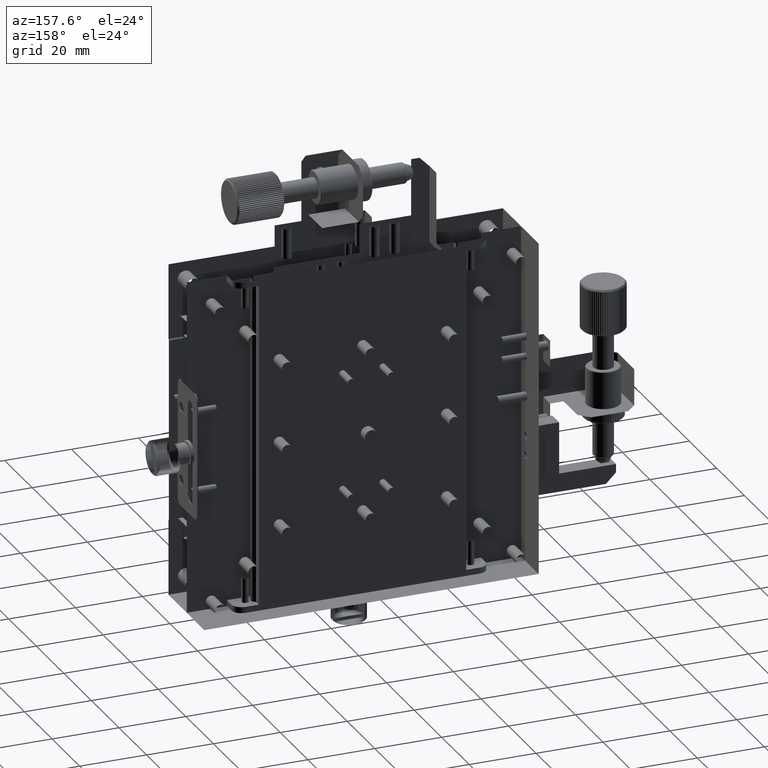
[diagram: clean part render]
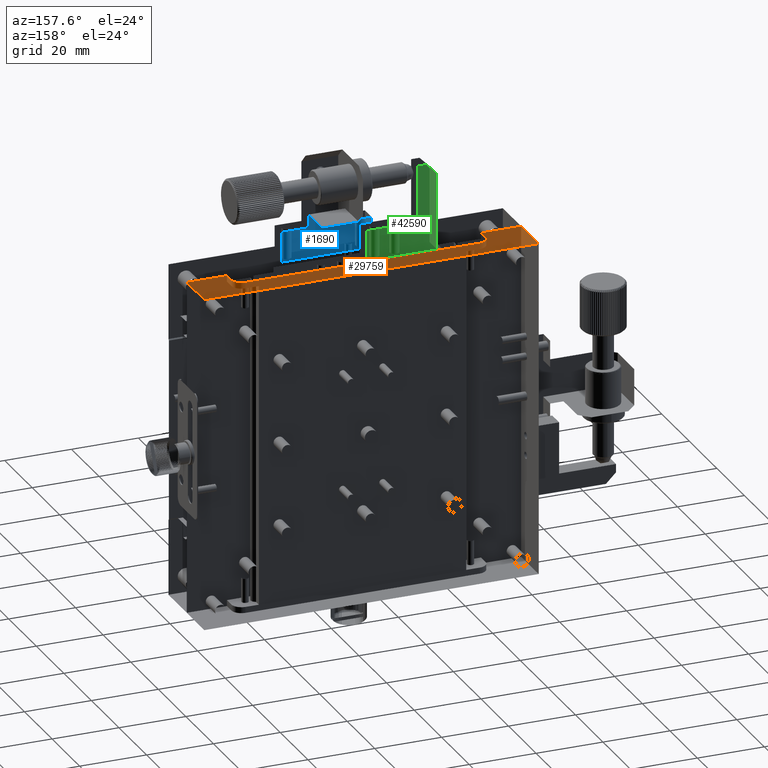
[diagram: same view with three faces highlighted in distinct colors, each labeled with its STEP entity id]
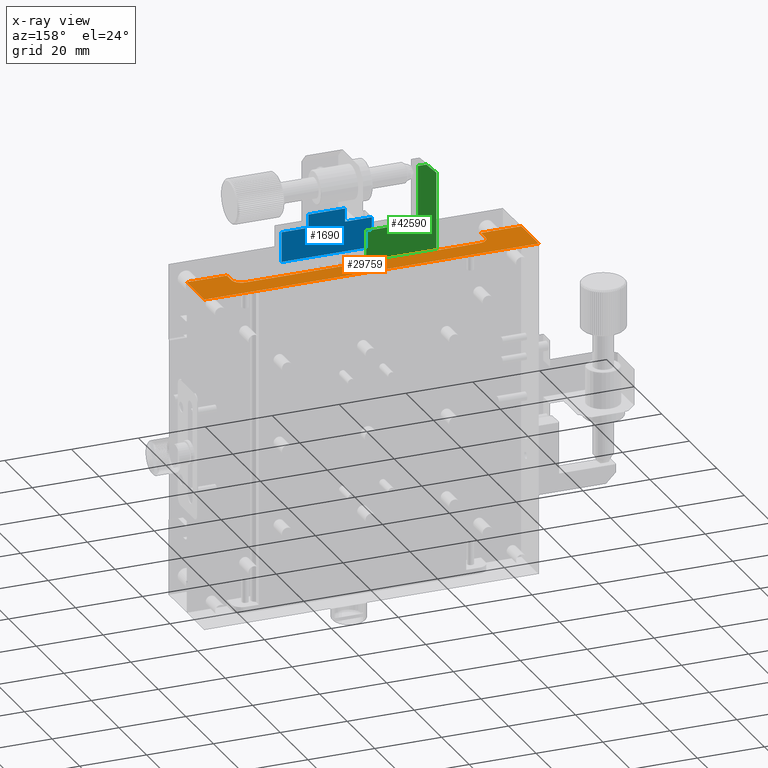
[diagram: x-ray of the same camera — body ghosted, the three highlighted faces saturated]
A machine part, auxiliary view with three faces highlighted in distinct colors.
The next image is the same camera in x-ray (body ghosted, the three faces saturated) — at least one of them is partly hidden behind the body in this view.
Their STEP definitions:

[orange] entity #29759 — the highlighted planar face has unit normal (0, 0, 1).
#2775 = EDGE_CURVE ( 'NONE', #25325, #24020, #39374, .T. ) ;
#3094 = LINE ( 'NONE', #33058, #32949 ) ;
#3163 = VERTEX_POINT ( 'NONE', #45565 ) ;
#3273 = CARTESIAN_POINT ( 'NONE',  ( -42.38432492328676915, 8.961813842482092340, 50.00000000000000000 ) ) ;
#3671 = CARTESIAN_POINT ( 'NONE',  ( -54.38432492328676204, 18.46181384248209767, 50.00000000000000000 ) ) ;
#4270 = EDGE_CURVE ( 'NONE', #22316, #9088, #22246, .T. ) ;
#4445 = LINE ( 'NONE', #42775, #6806 ) ;
#5071 = EDGE_CURVE ( 'NONE', #9088, #37787, #15183, .T. ) ;
#5344 = DIRECTION ( 'NONE',  ( 1.000000000000000000, 0.000000000000000000, -0.000000000000000000 ) ) ;
#5526 = ORIENTED_EDGE ( 'NONE', *, *, #44121, .F. ) ;
#6008 = CARTESIAN_POINT ( 'NONE',  ( 33.61567507671324506, 8.961813842482092340, 50.00000000000000000 ) ) ;
#6787 = DIRECTION ( 'NONE',  ( -1.000000000000000000, -0.000000000000000000, -0.000000000000000000 ) ) ;
#6806 = VECTOR ( 'NONE', #12070, 1000.000000000000000 ) ;
#7078 = VERTEX_POINT ( 'NONE', #44621 ) ;
#7443 = CARTESIAN_POINT ( 'NONE',  ( 45.61567507671323796, 4.961813842482097670, 50.00000000000000000 ) ) ;
#7513 = CARTESIAN_POINT ( 'NONE',  ( 33.61567507671324506, 4.961813842482097670, 50.00000000000000000 ) ) ;
#7806 = CARTESIAN_POINT ( 'NONE',  ( -4.384324923286764708, 5.711813842482097670, 50.00000000000000000 ) ) ;
#8033 = DIRECTION ( 'NONE',  ( 1.000000000000000000, 6.360652745248279795E-15, 0.000000000000000000 ) ) ;
#8310 = CARTESIAN_POINT ( 'NONE',  ( -42.38432492328677625, 5.711813842482097670, 50.00000000000000711 ) ) ;
#8835 = CIRCLE ( 'NONE', #39463, 3.000000000000002665 ) ;
#9088 = VERTEX_POINT ( 'NONE', #37291 ) ;
#9249 = LINE ( 'NONE', #39209, #27772 ) ;
#9636 = FACE_OUTER_BOUND ( 'NONE', #22232, .T. ) ;
#10356 = DIRECTION ( 'NONE',  ( 0.000000000000000000, 0.000000000000000000, 1.000000000000000000 ) ) ;
#12070 = DIRECTION ( 'NONE',  ( 1.000000000000000000, 0.000000000000000000, -0.000000000000000000 ) ) ;
#12259 = CARTESIAN_POINT ( 'NONE',  ( 45.61567507671323796, 5.711813842482097670, 50.00000000000000000 ) ) ;
#13835 = CARTESIAN_POINT ( 'NONE',  ( -4.384324923286764708, 5.711813842482096781, 50.00000000000000000 ) ) ;
#15183 = LINE ( 'NONE', #7806, #21714 ) ;
#15262 = ORIENTED_EDGE ( 'NONE', *, *, #47113, .F. ) ;
#18084 = DIRECTION ( 'NONE',  ( 1.000000000000000000, 1.156482317317870344E-15, 0.000000000000000000 ) ) ;
#18259 = ORIENTED_EDGE ( 'NONE', *, *, #5071, .F. ) ;
#19620 = AXIS2_PLACEMENT_3D ( 'NONE', #44897, #37284, #8033 ) ;
#20411 = EDGE_CURVE ( 'NONE', #7078, #22316, #23488, .T. ) ;
#20540 = DIRECTION ( 'NONE',  ( -0.000000000000000000, 1.000000000000000000, 0.000000000000000000 ) ) ;
#20741 = EDGE_CURVE ( 'NONE', #37210, #3163, #3094, .T. ) ;
#21714 = VECTOR ( 'NONE', #5344, 1000.000000000000000 ) ;
#21936 = LINE ( 'NONE', #7443, #32291 ) ;
#22232 = EDGE_LOOP ( 'NONE', ( #47935, #22675, #48411, #18259, #28930, #47614, #15262, #36893, #5526, #28688 ) ) ;
#22246 = LINE ( 'NONE', #7513, #42836 ) ;
#22316 = VERTEX_POINT ( 'NONE', #6008 ) ;
#22675 = ORIENTED_EDGE ( 'NONE', *, *, #20741, .F. ) ;
#23488 = CIRCLE ( 'NONE', #19620, 3.000000000000006217 ) ;
#24020 = VERTEX_POINT ( 'NONE', #8310 ) ;
#25323 = PLANE ( 'NONE',  #34295 ) ;
#25325 = VERTEX_POINT ( 'NONE', #39483 ) ;
#27772 = VECTOR ( 'NONE', #20540, 1000.000000000000000 ) ;
#28688 = ORIENTED_EDGE ( 'NONE', *, *, #2775, .F. ) ;
#28930 = ORIENTED_EDGE ( 'NONE', *, *, #4270, .F. ) ;
#29010 = DIRECTION ( 'NONE',  ( 1.000000000000000000, 0.000000000000000000, -0.000000000000000000 ) ) ;
#29034 = DIRECTION ( 'NONE',  ( 1.000000000000000000, 0.000000000000000000, -0.000000000000000000 ) ) ;
#29703 = DIRECTION ( 'NONE',  ( -0.000000000000000000, -1.000000000000000000, -0.000000000000000000 ) ) ;
#29759 = ADVANCED_FACE ( 'NONE', ( #9636 ), #25323, .F. ) ;
#30861 = CARTESIAN_POINT ( 'NONE',  ( -39.38432492328675494, 11.96181384248209767, 50.00000000000000000 ) ) ;
#32291 = VECTOR ( 'NONE', #48467, 1000.000000000000000 ) ;
#32538 = VERTEX_POINT ( 'NONE', #30861 ) ;
#32827 = DIRECTION ( 'NONE',  ( 0.000000000000000000, -1.000000000000000000, -0.000000000000000000 ) ) ;
#32949 = VECTOR ( 'NONE', #6787, 1000.000000000000000 ) ;
#33058 = CARTESIAN_POINT ( 'NONE',  ( 45.61567507671323796, 18.46181384248209767, 50.00000000000000000 ) ) ;
#33070 = VERTEX_POINT ( 'NONE', #3273 ) ;
#33332 = VECTOR ( 'NONE', #29034, 1000.000000000000000 ) ;
#33564 = CARTESIAN_POINT ( 'NONE',  ( 45.61567507671323796, 18.46181384248209767, 50.00000000000000000 ) ) ;
#33932 = EDGE_CURVE ( 'NONE', #37787, #37210, #21936, .T. ) ;
#34295 = AXIS2_PLACEMENT_3D ( 'NONE', #47934, #10356, #29010 ) ;
#36114 = LINE ( 'NONE', #3671, #44151 ) ;
#36731 = DIRECTION ( 'NONE',  ( -0.000000000000000000, -0.000000000000000000, -1.000000000000000000 ) ) ;
#36893 = ORIENTED_EDGE ( 'NONE', *, *, #40702, .F. ) ;
#37210 = VERTEX_POINT ( 'NONE', #33564 ) ;
#37284 = DIRECTION ( 'NONE',  ( -0.000000000000000000, -0.000000000000000000, -1.000000000000000000 ) ) ;
#37291 = CARTESIAN_POINT ( 'NONE',  ( 33.61567507671324506, 5.711813842482097670, 50.00000000000000711 ) ) ;
#37787 = VERTEX_POINT ( 'NONE', #12259 ) ;
#39209 = CARTESIAN_POINT ( 'NONE',  ( -42.38432492328676915, 4.961813842482097670, 50.00000000000000000 ) ) ;
#39374 = LINE ( 'NONE', #13835, #33332 ) ;
#39463 = AXIS2_PLACEMENT_3D ( 'NONE', #44110, #36731, #18084 ) ;
#39483 = CARTESIAN_POINT ( 'NONE',  ( -54.38432492328676204, 5.711813842482097670, 50.00000000000000000 ) ) ;
#40702 = EDGE_CURVE ( 'NONE', #33070, #32538, #8835, .T. ) ;
#42775 = CARTESIAN_POINT ( 'NONE',  ( -4.384324923286764708, 11.96181384248209767, 50.00000000000000000 ) ) ;
#42836 = VECTOR ( 'NONE', #32827, 1000.000000000000000 ) ;
#44110 = CARTESIAN_POINT ( 'NONE',  ( -39.38432492328676204, 8.961813842482097670, 50.00000000000000000 ) ) ;
#44121 = EDGE_CURVE ( 'NONE', #24020, #33070, #9249, .T. ) ;
#44151 = VECTOR ( 'NONE', #29703, 1000.000000000000000 ) ;
#44621 = CARTESIAN_POINT ( 'NONE',  ( 30.61567507671323440, 11.96181384248209767, 50.00000000000000000 ) ) ;
#44897 = CARTESIAN_POINT ( 'NONE',  ( 30.61567507671323796, 8.961813842482097670, 50.00000000000000000 ) ) ;
#45565 = CARTESIAN_POINT ( 'NONE',  ( -54.38432492328676204, 18.46181384248209767, 50.00000000000000000 ) ) ;
#47113 = EDGE_CURVE ( 'NONE', #32538, #7078, #4445, .T. ) ;
#47317 = EDGE_CURVE ( 'NONE', #3163, #25325, #36114, .T. ) ;
#47614 = ORIENTED_EDGE ( 'NONE', *, *, #20411, .F. ) ;
#47934 = CARTESIAN_POINT ( 'NONE',  ( -4.384324923286764708, 4.961813842482097670, 50.00000000000000000 ) ) ;
#47935 = ORIENTED_EDGE ( 'NONE', *, *, #47317, .F. ) ;
#48411 = ORIENTED_EDGE ( 'NONE', *, *, #33932, .F. ) ;
#48467 = DIRECTION ( 'NONE',  ( -0.000000000000000000, 1.000000000000000000, 0.000000000000000000 ) ) ;

[blue] entity #1690 — the highlighted planar face has unit normal (0, 1, 0).
#384 = CARTESIAN_POINT ( 'NONE',  ( -2.884324923286774034, 2.961813842482108772, 59.00000000000001421 ) ) ;
#1347 = CARTESIAN_POINT ( 'NONE',  ( -2.884324923286774034, 2.961813842482109216, 63.00000000000000000 ) ) ;
#1690 = ADVANCED_FACE ( 'NONE', ( #16715 ), #16968, .F. ) ;
#1693 = CARTESIAN_POINT ( 'NONE',  ( 16.11567507671322375, 2.961813842482109216, 59.00000000000001421 ) ) ;
#2726 = LINE ( 'NONE', #20914, #23392 ) ;
#2783 = DIRECTION ( 'NONE',  ( -0.000000000000000000, -0.000000000000000000, 1.000000000000000000 ) ) ;
#3335 = CARTESIAN_POINT ( 'NONE',  ( 16.11567507671322375, 2.961813842482109216, 50.00000000000000000 ) ) ;
#3339 = VECTOR ( 'NONE', #47381, 1000.000000000000000 ) ;
#4494 = CARTESIAN_POINT ( 'NONE',  ( 8.115675076713225522, 2.961813842482109216, 63.00000000000000000 ) ) ;
#5248 = ORIENTED_EDGE ( 'NONE', *, *, #45104, .F. ) ;
#6062 = DIRECTION ( 'NONE',  ( -1.000000000000000000, -0.000000000000000000, 0.000000000000000000 ) ) ;
#7995 = VERTEX_POINT ( 'NONE', #29377 ) ;
#8089 = LINE ( 'NONE', #23297, #22362 ) ;
#12375 = VERTEX_POINT ( 'NONE', #35795 ) ;
#12501 = DIRECTION ( 'NONE',  ( 1.000000000000000000, 0.000000000000000000, 0.000000000000000000 ) ) ;
#12954 = VECTOR ( 'NONE', #34294, 1000.000000000000000 ) ;
#13035 = DIRECTION ( 'NONE',  ( 0.000000000000000000, -0.000000000000000000, 1.000000000000000000 ) ) ;
#13545 = DIRECTION ( 'NONE',  ( 1.000000000000000000, -0.000000000000000000, -2.168404344971008868E-16 ) ) ;
#14751 = CARTESIAN_POINT ( 'NONE',  ( 8.115675076713225522, 2.961813842482108772, 59.00000000000001421 ) ) ;
#16715 = FACE_OUTER_BOUND ( 'NONE', #35256, .T. ) ;
#16968 = PLANE ( 'NONE',  #22274 ) ;
#17663 = VERTEX_POINT ( 'NONE', #4494 ) ;
#18047 = VERTEX_POINT ( 'NONE', #34632 ) ;
#18894 = ORIENTED_EDGE ( 'NONE', *, *, #36229, .T. ) ;
#19259 = ORIENTED_EDGE ( 'NONE', *, *, #36286, .F. ) ;
#19278 = VECTOR ( 'NONE', #2783, 1000.000000000000000 ) ;
#20002 = ORIENTED_EDGE ( 'NONE', *, *, #31726, .F. ) ;
#20914 = CARTESIAN_POINT ( 'NONE',  ( -10.88432492328677448, 2.961813842482109660, 59.00000000000001421 ) ) ;
#21572 = CARTESIAN_POINT ( 'NONE',  ( 8.115675076713225522, 2.961813842482108772, 80.00000000000000000 ) ) ;
#22274 = AXIS2_PLACEMENT_3D ( 'NONE', #31698, #46689, #13035 ) ;
#22362 = VECTOR ( 'NONE', #12501, 1000.000000000000000 ) ;
#22583 = VERTEX_POINT ( 'NONE', #1347 ) ;
#22591 = CARTESIAN_POINT ( 'NONE',  ( -10.88432492328677448, 2.961813842482109216, 50.00000000000000000 ) ) ;
#23297 = CARTESIAN_POINT ( 'NONE',  ( 8.115675076713225522, 2.961813842482108772, 59.00000000000001421 ) ) ;
#23392 = VECTOR ( 'NONE', #13545, 1000.000000000000000 ) ;
#23418 = ORIENTED_EDGE ( 'NONE', *, *, #45905, .T. ) ;
#24276 = VECTOR ( 'NONE', #45607, 1000.000000000000000 ) ;
#24868 = ORIENTED_EDGE ( 'NONE', *, *, #32520, .F. ) ;
#25241 = LINE ( 'NONE', #21572, #3339 ) ;
#28431 = ORIENTED_EDGE ( 'NONE', *, *, #44778, .F. ) ;
#29377 = CARTESIAN_POINT ( 'NONE',  ( -10.88432492328677448, 2.961813842482109216, 59.00000000000001421 ) ) ;
#30601 = CARTESIAN_POINT ( 'NONE',  ( -10.88432492328677448, 2.961813842482108772, 63.00000000000000000 ) ) ;
#31698 = CARTESIAN_POINT ( 'NONE',  ( -10.88432492328677448, 2.961813842482108772, 50.00000000000000000 ) ) ;
#31726 = EDGE_CURVE ( 'NONE', #7995, #12375, #2726, .T. ) ;
#32520 = EDGE_CURVE ( 'NONE', #22583, #17663, #34301, .T. ) ;
#33642 = LINE ( 'NONE', #22591, #35443 ) ;
#34294 = DIRECTION ( 'NONE',  ( -0.000000000000000000, -0.000000000000000000, 1.000000000000000000 ) ) ;
#34301 = LINE ( 'NONE', #30601, #24276 ) ;
#34632 = CARTESIAN_POINT ( 'NONE',  ( -10.88432492328677448, 2.961813842482109216, 50.00000000000000000 ) ) ;
#35256 = EDGE_LOOP ( 'NONE', ( #20002, #18894, #19259, #23418, #28431, #47782, #24868, #5248 ) ) ;
#35443 = VECTOR ( 'NONE', #48625, 1000.000000000000000 ) ;
#35795 = CARTESIAN_POINT ( 'NONE',  ( -2.884324923286774034, 2.961813842482109216, 59.00000000000001421 ) ) ;
#36229 = EDGE_CURVE ( 'NONE', #7995, #18047, #33642, .T. ) ;
#36244 = VERTEX_POINT ( 'NONE', #14751 ) ;
#36286 = EDGE_CURVE ( 'NONE', #41974, #18047, #39709, .T. ) ;
#36430 = LINE ( 'NONE', #41092, #19278 ) ;
#39709 = LINE ( 'NONE', #46341, #40921 ) ;
#40921 = VECTOR ( 'NONE', #6062, 1000.000000000000000 ) ;
#41092 = CARTESIAN_POINT ( 'NONE',  ( 16.11567507671322375, 2.961813842482109216, 80.00000000000000000 ) ) ;
#41576 = EDGE_CURVE ( 'NONE', #17663, #36244, #25241, .T. ) ;
#41974 = VERTEX_POINT ( 'NONE', #3335 ) ;
#42453 = VERTEX_POINT ( 'NONE', #1693 ) ;
#44778 = EDGE_CURVE ( 'NONE', #36244, #42453, #8089, .T. ) ;
#45104 = EDGE_CURVE ( 'NONE', #12375, #22583, #46099, .T. ) ;
#45607 = DIRECTION ( 'NONE',  ( 1.000000000000000000, 0.000000000000000000, -0.000000000000000000 ) ) ;
#45905 = EDGE_CURVE ( 'NONE', #41974, #42453, #36430, .T. ) ;
#46099 = LINE ( 'NONE', #384, #12954 ) ;
#46341 = CARTESIAN_POINT ( 'NONE',  ( -10.88432492328677448, 2.961813842482108772, 50.00000000000000000 ) ) ;
#46689 = DIRECTION ( 'NONE',  ( 0.000000000000000000, 1.000000000000000000, 0.000000000000000000 ) ) ;
#47381 = DIRECTION ( 'NONE',  ( -0.000000000000000000, -0.000000000000000000, -1.000000000000000000 ) ) ;
#47782 = ORIENTED_EDGE ( 'NONE', *, *, #41576, .F. ) ;
#48625 = DIRECTION ( 'NONE',  ( -0.000000000000000000, -0.000000000000000000, -1.000000000000000000 ) ) ;

[green] entity #42590 — the highlighted planar face has unit normal (0, -1, 0).
#1743 = VECTOR ( 'NONE', #32622, 1000.000000000000000 ) ;
#2101 = ORIENTED_EDGE ( 'NONE', *, *, #8948, .T. ) ;
#2484 = EDGE_CURVE ( 'NONE', #13702, #45850, #18773, .T. ) ;
#2896 = CARTESIAN_POINT ( 'NONE',  ( -21.38432492328676915, 10.96181384248208168, 50.00000000000000000 ) ) ;
#4005 = DIRECTION ( 'NONE',  ( -1.000000000000000000, -0.000000000000000000, -0.000000000000000000 ) ) ;
#6099 = CARTESIAN_POINT ( 'NONE',  ( -5.884324923286773590, 10.96181384248208168, 50.00000000000000000 ) ) ;
#6100 = ORIENTED_EDGE ( 'NONE', *, *, #7049, .T. ) ;
#6616 = DIRECTION ( 'NONE',  ( 0.000000000000000000, -0.000000000000000000, -1.000000000000000000 ) ) ;
#6881 = EDGE_CURVE ( 'NONE', #45850, #40158, #16158, .T. ) ;
#7049 = EDGE_CURVE ( 'NONE', #22657, #46054, #14658, .T. ) ;
#7050 = EDGE_LOOP ( 'NONE', ( #2101, #6100, #30633, #38004, #39570, #45848, #28847 ) ) ;
#8063 = AXIS2_PLACEMENT_3D ( 'NONE', #43714, #10054, #6616 ) ;
#8948 = EDGE_CURVE ( 'NONE', #40158, #22657, #13753, .T. ) ;
#9271 = VECTOR ( 'NONE', #17687, 1000.000000000000000 ) ;
#9948 = VECTOR ( 'NONE', #22502, 1000.000000000000000 ) ;
#10054 = DIRECTION ( 'NONE',  ( 0.000000000000000000, -1.000000000000000000, 0.000000000000000000 ) ) ;
#10103 = CARTESIAN_POINT ( 'NONE',  ( -21.38432492328676915, 10.96181384248208168, 59.00000000000001421 ) ) ;
#10884 = CARTESIAN_POINT ( 'NONE',  ( -23.88432492328677625, 10.96181384248208168, 76.00000000000001421 ) ) ;
#13702 = VERTEX_POINT ( 'NONE', #28462 ) ;
#13753 = LINE ( 'NONE', #24291, #9271 ) ;
#14658 = LINE ( 'NONE', #48311, #9948 ) ;
#16158 = LINE ( 'NONE', #35065, #26387 ) ;
#17687 = DIRECTION ( 'NONE',  ( 0.000000000000000000, -0.000000000000000000, -1.000000000000000000 ) ) ;
#18773 = LINE ( 'NONE', #48263, #22309 ) ;
#20180 = CARTESIAN_POINT ( 'NONE',  ( -26.88432492328677625, 10.96181384248208168, 73.00000000000001421 ) ) ;
#21340 = PLANE ( 'NONE',  #8063 ) ;
#22309 = VECTOR ( 'NONE', #4005, 1000.000000000000000 ) ;
#22502 = DIRECTION ( 'NONE',  ( 1.000000000000000000, 0.000000000000000000, 0.000000000000000000 ) ) ;
#22657 = VERTEX_POINT ( 'NONE', #34264 ) ;
#24291 = CARTESIAN_POINT ( 'NONE',  ( -26.88432492328677625, 10.96181384248208168, 50.00000000000000000 ) ) ;
#25715 = LINE ( 'NONE', #2896, #48074 ) ;
#26387 = VECTOR ( 'NONE', #45890, 1000.000000000000000 ) ;
#28095 = CARTESIAN_POINT ( 'NONE',  ( -5.884324923286773590, 10.96181384248208168, 59.00000000000001421 ) ) ;
#28230 = FACE_OUTER_BOUND ( 'NONE', #7050, .T. ) ;
#28462 = CARTESIAN_POINT ( 'NONE',  ( -21.38432492328676915, 10.96181384248208168, 76.00000000000001421 ) ) ;
#28847 = ORIENTED_EDGE ( 'NONE', *, *, #6881, .T. ) ;
#30633 = ORIENTED_EDGE ( 'NONE', *, *, #37038, .T. ) ;
#32622 = DIRECTION ( 'NONE',  ( -0.000000000000000000, 0.000000000000000000, 1.000000000000000000 ) ) ;
#33464 = DIRECTION ( 'NONE',  ( -1.000000000000000000, -0.000000000000000000, -0.000000000000000000 ) ) ;
#34177 = CARTESIAN_POINT ( 'NONE',  ( -26.88432492328677625, 10.96181384248208168, 59.00000000000001421 ) ) ;
#34264 = CARTESIAN_POINT ( 'NONE',  ( -26.88432492328677625, 10.96181384248208168, 50.00000000000000000 ) ) ;
#34515 = EDGE_CURVE ( 'NONE', #45799, #44470, #37392, .T. ) ;
#35065 = CARTESIAN_POINT ( 'NONE',  ( -23.88432492328677625, 10.96181384248208168, 76.00000000000001421 ) ) ;
#37023 = LINE ( 'NONE', #6099, #1743 ) ;
#37038 = EDGE_CURVE ( 'NONE', #46054, #45799, #37023, .T. ) ;
#37264 = DIRECTION ( 'NONE',  ( -0.000000000000000000, 0.000000000000000000, 1.000000000000000000 ) ) ;
#37392 = LINE ( 'NONE', #34177, #44188 ) ;
#38004 = ORIENTED_EDGE ( 'NONE', *, *, #34515, .T. ) ;
#39570 = ORIENTED_EDGE ( 'NONE', *, *, #47666, .T. ) ;
#40158 = VERTEX_POINT ( 'NONE', #20180 ) ;
#42590 = ADVANCED_FACE ( 'NONE', ( #28230 ), #21340, .T. ) ;
#43714 = CARTESIAN_POINT ( 'NONE',  ( -26.88432492328677625, 10.96181384248208168, 50.00000000000000000 ) ) ;
#44188 = VECTOR ( 'NONE', #33464, 1000.000000000000000 ) ;
#44470 = VERTEX_POINT ( 'NONE', #10103 ) ;
#45485 = CARTESIAN_POINT ( 'NONE',  ( -5.884324923286773590, 10.96181384248208168, 50.00000000000000000 ) ) ;
#45799 = VERTEX_POINT ( 'NONE', #28095 ) ;
#45848 = ORIENTED_EDGE ( 'NONE', *, *, #2484, .T. ) ;
#45850 = VERTEX_POINT ( 'NONE', #10884 ) ;
#45890 = DIRECTION ( 'NONE',  ( -0.7071067811865471286, 0.000000000000000000, -0.7071067811865479058 ) ) ;
#46054 = VERTEX_POINT ( 'NONE', #45485 ) ;
#47666 = EDGE_CURVE ( 'NONE', #44470, #13702, #25715, .T. ) ;
#48074 = VECTOR ( 'NONE', #37264, 1000.000000000000000 ) ;
#48263 = CARTESIAN_POINT ( 'NONE',  ( -26.88432492328677625, 10.96181384248208168, 76.00000000000001421 ) ) ;
#48311 = CARTESIAN_POINT ( 'NONE',  ( -26.88432492328677625, 10.96181384248208168, 50.00000000000000000 ) ) ;